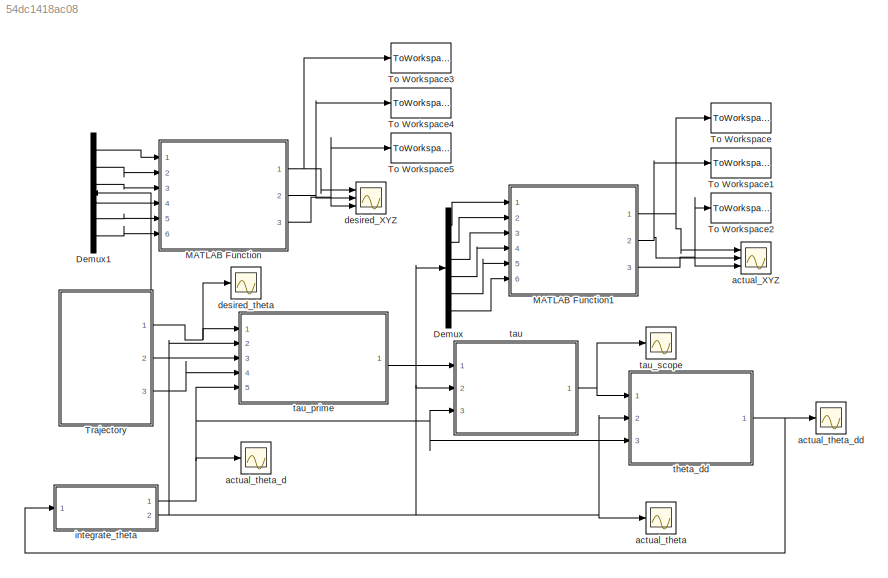
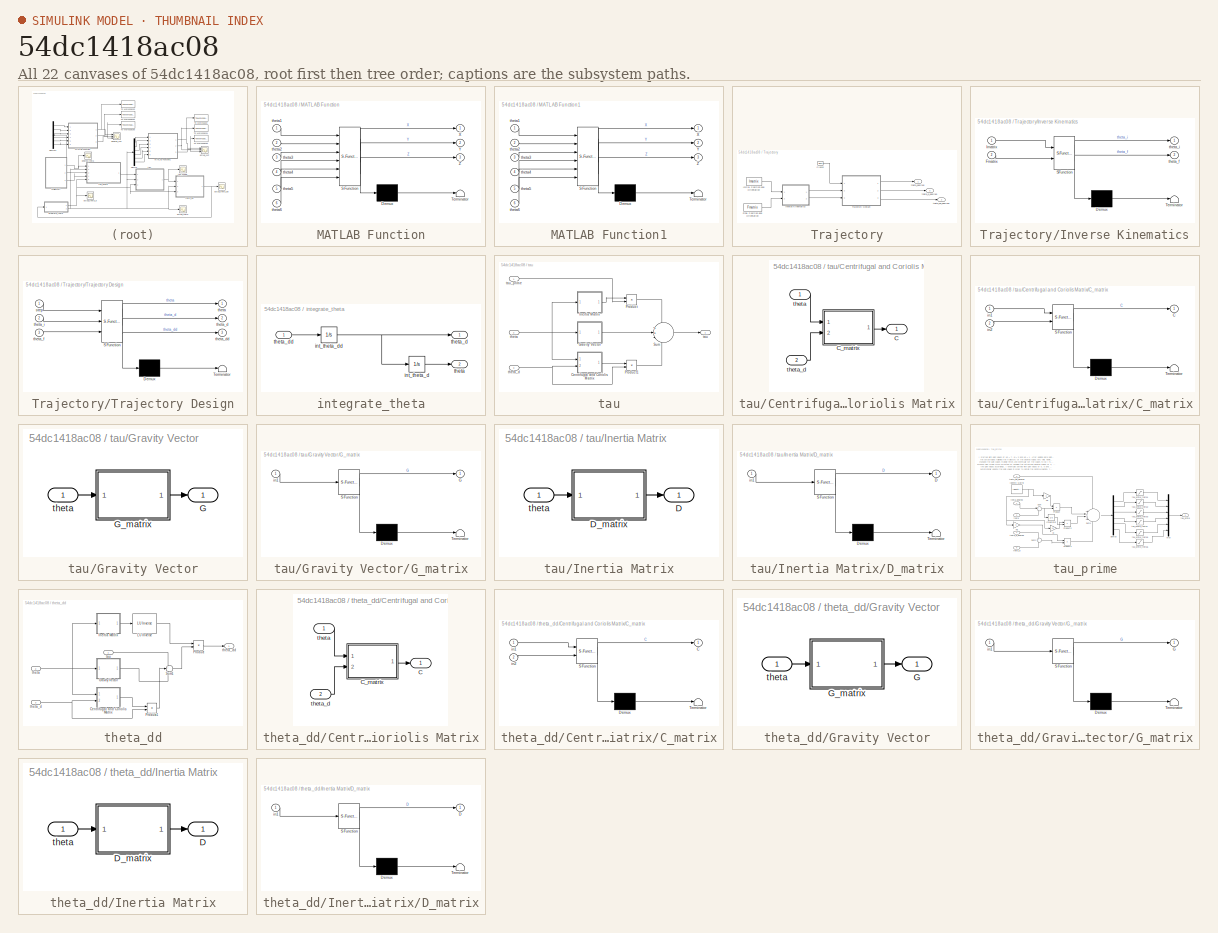
[diagram: thumbnail index - all 22 canvases of the model, root first then tree order]
MODEL slx_54dc1418ac08
KIND model
CONFIG AbsTol = auto
CONFIG EnableMultiTasking = on
CONFIG FixedStep = auto
CONFIG MaxStep = auto
CONFIG MinStep = auto
CONFIG RelTol = 1e-3
CONFIG SampleTimeConstraint = Unconstrained
CONFIG Solver = VariableStepAuto
CONFIG SolverName = VariableStepAuto
CONFIG StartTime = 0.0
CONFIG StopTime = 10.0
BLOCK [Demux] Demux
  DisplayOption = bar
  Outputs = 6
  Ports = [1, 6]
BLOCK [Demux] Demux1
  DisplayOption = bar
  Outputs = 6
  Ports = [1, 6]
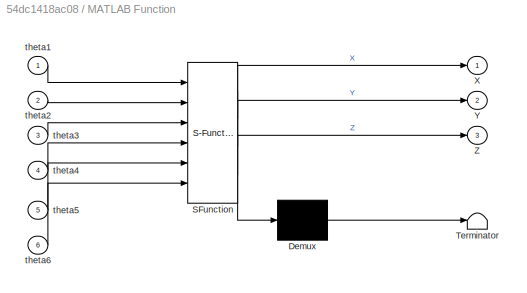
BLOCK [SubSystem] MATLAB Function
  ErrorFcn = Stateflow.Translate.translate
  PermitHierarchicalResolution = ExplicitOnly
  Ports = [6, 3]
  RequestExecContextInheritance = off
  SFBlockType = MATLAB Function
  TreatAsAtomicUnit = on
  Variant = off
BLOCK [Demux] MATLAB Function/ Demux 
  Outputs = 1
  Ports = [1, 1]
BLOCK [S-Function] MATLAB Function/ SFunction 
  EnableBusSupport = on
  FunctionName = sf_sfun
  PortCounts = [6 4]
  Ports = [6, 4]
  SFcnIsStateOwnerBlock = off
  SFunctionDeploymentMode = off
  Tag = Stateflow S-Function PID_Controller 2
BLOCK [Terminator] MATLAB Function/ Terminator 
BLOCK [Outport] MATLAB Function/X
  IconDisplay = Port number
BLOCK [Outport] MATLAB Function/Y
  IconDisplay = Port number
  Port = 2
BLOCK [Outport] MATLAB Function/Z
  IconDisplay = Port number
  Port = 3
BLOCK [Inport] MATLAB Function/theta1
  IconDisplay = Port number
BLOCK [Inport] MATLAB Function/theta2
  IconDisplay = Port number
  Port = 2
BLOCK [Inport] MATLAB Function/theta3
  IconDisplay = Port number
  Port = 3
BLOCK [Inport] MATLAB Function/theta4
  IconDisplay = Port number
  Port = 4
BLOCK [Inport] MATLAB Function/theta5
  IconDisplay = Port number
  Port = 5
BLOCK [Inport] MATLAB Function/theta6
  IconDisplay = Port number
  Port = 6
BLOCK [SubSystem] MATLAB Function1
  ErrorFcn = Stateflow.Translate.translate
  PermitHierarchicalResolution = ExplicitOnly
  Ports = [6, 3]
  RequestExecContextInheritance = off
  SFBlockType = MATLAB Function
  TreatAsAtomicUnit = on
  Variant = off
BLOCK [Demux] MATLAB Function1/ Demux 
  Outputs = 1
  Ports = [1, 1]
BLOCK [S-Function] MATLAB Function1/ SFunction 
  EnableBusSupport = on
  FunctionName = sf_sfun
  PortCounts = [6 4]
  Ports = [6, 4]
  SFcnIsStateOwnerBlock = off
  SFunctionDeploymentMode = off
  Tag = Stateflow S-Function PID_Controller 1
BLOCK [Terminator] MATLAB Function1/ Terminator 
BLOCK [Outport] MATLAB Function1/X
  IconDisplay = Port number
BLOCK [Outport] MATLAB Function1/Y
  IconDisplay = Port number
  Port = 2
BLOCK [Outport] MATLAB Function1/Z
  IconDisplay = Port number
  Port = 3
BLOCK [Inport] MATLAB Function1/theta1
  IconDisplay = Port number
BLOCK [Inport] MATLAB Function1/theta2
  IconDisplay = Port number
  Port = 2
BLOCK [Inport] MATLAB Function1/theta3
  IconDisplay = Port number
  Port = 3
BLOCK [Inport] MATLAB Function1/theta4
  IconDisplay = Port number
  Port = 4
BLOCK [Inport] MATLAB Function1/theta5
  IconDisplay = Port number
  Port = 5
BLOCK [Inport] MATLAB Function1/theta6
  IconDisplay = Port number
  Port = 6
BLOCK [ToWorkspace] To Workspace
  FixptAsFi = on
  MaxDataPoints = inf
  Ports = [1]
  SampleTime = -1
  Save2DSignal = 3-D array (concatenate along third dimension)
  VariableName = actual_X
BLOCK [ToWorkspace] To Workspace1
  FixptAsFi = on
  MaxDataPoints = inf
  Ports = [1]
  SampleTime = -1
  Save2DSignal = 3-D array (concatenate along third dimension)
  VariableName = actual_Y
BLOCK [ToWorkspace] To Workspace2
  FixptAsFi = on
  MaxDataPoints = inf
  Ports = [1]
  SampleTime = -1
  Save2DSignal = 3-D array (concatenate along third dimension)
  VariableName = actual_Z
BLOCK [ToWorkspace] To Workspace3
  FixptAsFi = on
  MaxDataPoints = inf
  Ports = [1]
  SampleTime = -1
  Save2DSignal = 3-D array (concatenate along third dimension)
  VariableName = desired_X
BLOCK [ToWorkspace] To Workspace4
  FixptAsFi = on
  MaxDataPoints = inf
  Ports = [1]
  SampleTime = -1
  Save2DSignal = 3-D array (concatenate along third dimension)
  VariableName = desired_Y
BLOCK [ToWorkspace] To Workspace5
  FixptAsFi = on
  MaxDataPoints = inf
  Ports = [1]
  SampleTime = -1
  Save2DSignal = 3-D array (concatenate along third dimension)
  VariableName = desired_Z
BLOCK [SubSystem] Trajectory
  Permissions = ReadOnly
  Ports = [0, 3]
  RequestExecContextInheritance = off
  Variant = off
BLOCK [Clock] Trajectory/Clock2
  Decimation = 1000
BLOCK [Constant] Trajectory/Final Position and Orientation
  Value = Fmatrix
BLOCK [Constant] Trajectory/Initial Position and Orientation
  Value = Imatrix
BLOCK [SubSystem] Trajectory/Inverse Kinematics
  ErrorFcn = Stateflow.Translate.translate
  PermitHierarchicalResolution = ExplicitOnly
  Ports = [2, 2]
  RequestExecContextInheritance = off
  SFBlockType = MATLAB Function
  TreatAsAtomicUnit = on
  Variant = off
BLOCK [Demux] Trajectory/Inverse Kinematics/ Demux 
  Outputs = 1
  Ports = [1, 1]
BLOCK [S-Function] Trajectory/Inverse Kinematics/ SFunction 
  EnableBusSupport = on
  FunctionName = sf_sfun
  PortCounts = [2 3]
  Ports = [2, 3]
  SFcnIsStateOwnerBlock = off
  SFunctionDeploymentMode = off
  Tag = Stateflow S-Function PID_Controller 4
BLOCK [Terminator] Trajectory/Inverse Kinematics/ Terminator 
BLOCK [Inport] Trajectory/Inverse Kinematics/Fmatrix
  IconDisplay = Port number
  Port = 2
BLOCK [Inport] Trajectory/Inverse Kinematics/Imatrix
  IconDisplay = Port number
BLOCK [Outport] Trajectory/Inverse Kinematics/theta_f
  IconDisplay = Port number
  Port = 2
BLOCK [Outport] Trajectory/Inverse Kinematics/theta_i
  IconDisplay = Port number
BLOCK [SubSystem] Trajectory/Trajectory Design
  ErrorFcn = Stateflow.Translate.translate
  PermitHierarchicalResolution = ExplicitOnly
  Ports = [3, 3]
  RequestExecContextInheritance = off
  SFBlockType = MATLAB Function
  TreatAsAtomicUnit = on
  Variant = off
BLOCK [Demux] Trajectory/Trajectory Design/ Demux 
  Outputs = 1
  Ports = [1, 1]
BLOCK [S-Function] Trajectory/Trajectory Design/ SFunction 
  EnableBusSupport = on
  FunctionName = sf_sfun
  PortCounts = [3 4]
  Ports = [3, 4]
  SFcnIsStateOwnerBlock = off
  SFunctionDeploymentMode = off
  Tag = Stateflow S-Function PID_Controller 32
BLOCK [Terminator] Trajectory/Trajectory Design/ Terminator 
BLOCK [Inport] Trajectory/Trajectory Design/step
  IconDisplay = Port number
BLOCK [Outport] Trajectory/Trajectory Design/theta
  IconDisplay = Port number
BLOCK [Outport] Trajectory/Trajectory Design/theta_d
  IconDisplay = Port number
  Port = 2
BLOCK [Outport] Trajectory/Trajectory Design/theta_dd
  IconDisplay = Port number
  Port = 3
BLOCK [Inport] Trajectory/Trajectory Design/theta_f
  IconDisplay = Port number
  Port = 3
BLOCK [Inport] Trajectory/Trajectory Design/theta_i
  IconDisplay = Port number
  Port = 2
BLOCK [Outport] Trajectory/theta_d_desired
  IconDisplay = Port number
  Port = 3
BLOCK [Outport] Trajectory/theta_dd_desired
  IconDisplay = Port number
  Port = 2
BLOCK [Outport] Trajectory/theta_desired
  IconDisplay = Port number
BLOCK [Scope] actual_XYZ
  NumInputPorts = 3
  Ports = [3]
  ScopeSpecificationString = Simulink.scopes.TimeScopeBlockCfg('CurrentConfiguration', extmgr.ConfigurationSet(extmgr.Configuration('Core','General UI',true),extmgr.Configuration('Core','Source UI',true),extmgr.Configuration('Sources','WiredSimulink',true,'DataLoggingVariableName','ScopeData1'),extmgr.Configuration('Visuals','Time Domain',true,'SerializedDisplays',{struct('MinYLimReal','-0.16966','MaxYLimReal','1.68552','YLab...<+1448ch>
BLOCK [Scope] actual_theta
  NumInputPorts = 1
  Ports = [1]
  ScopeSpecificationString = Simulink.scopes.TimeScopeBlockCfg('CurrentConfiguration', extmgr.ConfigurationSet(extmgr.Configuration('Core','General UI',true),extmgr.Configuration('Core','Source UI',true),extmgr.Configuration('Sources','WiredSimulink',true,'DataLoggingVariableName','actual_theta_scope','DataLogging',true,'DataLoggingSaveFormat','Array'),extmgr.Configuration('Visuals','Time Domain',true,'SerializedDisplays',{st...<+1624ch>
BLOCK [Scope] actual_theta_d
  NumInputPorts = 1
  Ports = [1]
  ScopeSpecificationString = Simulink.scopes.TimeScopeBlockCfg('CurrentConfiguration', extmgr.ConfigurationSet(extmgr.Configuration('Core','General UI',true),extmgr.Configuration('Core','Source UI',true),extmgr.Configuration('Sources','WiredSimulink',true,'DataLoggingVariableName','actual_theta_d_scope','DataLogging',true,'DataLoggingSaveFormat','Array'),extmgr.Configuration('Visuals','Time Domain',true,'SerializedDisplays',{...<+1628ch>
BLOCK [Scope] actual_theta_dd
  NumInputPorts = 1
  Ports = [1]
  ScopeSpecificationString = Simulink.scopes.TimeScopeBlockCfg('CurrentConfiguration', extmgr.ConfigurationSet(extmgr.Configuration('Core','General UI',true),extmgr.Configuration('Core','Source UI',true),extmgr.Configuration('Sources','WiredSimulink',true,'DataLoggingVariableName','actual_theta_dd_scope','DataLogging',true,'DataLoggingSaveFormat','Array'),extmgr.Configuration('Visuals','Time Domain',true,'SerializedDisplays',...<+1573ch>
BLOCK [Scope] desired_XYZ
  NumInputPorts = 3
  Ports = [3]
  ScopeSpecificationString = Simulink.scopes.TimeScopeBlockCfg('CurrentConfiguration', extmgr.ConfigurationSet(extmgr.Configuration('Core','General UI',true),extmgr.Configuration('Core','Source UI',true),extmgr.Configuration('Sources','WiredSimulink',true,'DataLoggingVariableName','ScopeData2'),extmgr.Configuration('Visuals','Time Domain',true,'SerializedDisplays',{struct('MinYLimReal','-0.1875','MaxYLimReal','1.6875','YLabel...<+1439ch>
BLOCK [Scope] desired_theta
  NumInputPorts = 1
  Ports = [1]
  ScopeSpecificationString = Simulink.scopes.TimeScopeBlockCfg('CurrentConfiguration', extmgr.ConfigurationSet(extmgr.Configuration('Core','General UI',true),extmgr.Configuration('Core','Source UI',true),extmgr.Configuration('Sources','WiredSimulink',true),extmgr.Configuration('Visuals','Time Domain',true,'SerializedDisplays',{struct('MinYLimReal','-2.94444','MaxYLimReal','1.68466','YLabelReal','','MinYLimMag','0.00000','MaxY...<+1472ch>
BLOCK [SubSystem] integrate_theta
  Ports = [1, 2]
  RequestExecContextInheritance = off
  Variant = off
BLOCK [Integrator] integrate_theta/int_theta_d
  Ports = [1, 1]
BLOCK [Integrator] integrate_theta/int_theta_dd
  Ports = [1, 1]
BLOCK [Outport] integrate_theta/theta
  IconDisplay = Port number
  Port = 2
BLOCK [Outport] integrate_theta/theta_d
  IconDisplay = Port number
BLOCK [Inport] integrate_theta/theta_dd
  IconDisplay = Port number
BLOCK [SubSystem] tau
  Ports = [3, 1]
  RequestExecContextInheritance = off
  Variant = off
BLOCK [SubSystem] tau/Centrifugal and Coriolis Matrix
  Permissions = ReadOnly
  Ports = [2, 1]
  RequestExecContextInheritance = off
  Variant = off
BLOCK [Outport] tau/Centrifugal and Coriolis Matrix/C
  IconDisplay = Port number
BLOCK [SubSystem] tau/Centrifugal and Coriolis Matrix/C_matrix
  ErrorFcn = Stateflow.Translate.translate
  PermitHierarchicalResolution = ExplicitOnly
  Ports = [2, 1]
  RequestExecContextInheritance = off
  SFBlockType = MATLAB Function
  TreatAsAtomicUnit = on
  Variant = off
BLOCK [Demux] tau/Centrifugal and Coriolis Matrix/C_matrix/ Demux 
  Outputs = 1
  Ports = [1, 1]
BLOCK [S-Function] tau/Centrifugal and Coriolis Matrix/C_matrix/ SFunction 
  EnableBusSupport = on
  FunctionName = sf_sfun
  PortCounts = [2 2]
  Ports = [2, 2]
  SFcnIsStateOwnerBlock = off
  SFunctionDeploymentMode = off
  Tag = Stateflow S-Function PID_Controller 5
BLOCK [Terminator] tau/Centrifugal and Coriolis Matrix/C_matrix/ Terminator 
BLOCK [Outport] tau/Centrifugal and Coriolis Matrix/C_matrix/C
  IconDisplay = Port number
BLOCK [Inport] tau/Centrifugal and Coriolis Matrix/C_matrix/in1
  IconDisplay = Port number
BLOCK [Inport] tau/Centrifugal and Coriolis Matrix/C_matrix/in2
  IconDisplay = Port number
  Port = 2
BLOCK [Inport] tau/Centrifugal and Coriolis Matrix/theta
  IconDisplay = Port number
BLOCK [Inport] tau/Centrifugal and Coriolis Matrix/theta_d
  IconDisplay = Port number
  Port = 2
BLOCK [SubSystem] tau/Gravity Vector
  Permissions = ReadOnly
  Ports = [1, 1]
  RequestExecContextInheritance = off
  Variant = off
BLOCK [Outport] tau/Gravity Vector/G
  IconDisplay = Port number
BLOCK [SubSystem] tau/Gravity Vector/G_matrix
  ErrorFcn = Stateflow.Translate.translate
  PermitHierarchicalResolution = ExplicitOnly
  Ports = [1, 1]
  RequestExecContextInheritance = off
  SFBlockType = MATLAB Function
  TreatAsAtomicUnit = on
  Variant = off
BLOCK [Demux] tau/Gravity Vector/G_matrix/ Demux 
  Outputs = 1
  Ports = [1, 1]
BLOCK [S-Function] tau/Gravity Vector/G_matrix/ SFunction 
  EnableBusSupport = on
  FunctionName = sf_sfun
  PortCounts = [1 2]
  Ports = [1, 2]
  SFcnIsStateOwnerBlock = off
  SFunctionDeploymentMode = off
  Tag = Stateflow S-Function PID_Controller 6
BLOCK [Terminator] tau/Gravity Vector/G_matrix/ Terminator 
BLOCK [Outport] tau/Gravity Vector/G_matrix/G
  IconDisplay = Port number
BLOCK [Inport] tau/Gravity Vector/G_matrix/in1
  IconDisplay = Port number
BLOCK [Inport] tau/Gravity Vector/theta
  IconDisplay = Port number
BLOCK [SubSystem] tau/Inertia Matrix
  Permissions = ReadOnly
  Ports = [1, 1]
  RequestExecContextInheritance = off
  Variant = off
BLOCK [Outport] tau/Inertia Matrix/D
  IconDisplay = Port number
BLOCK [SubSystem] tau/Inertia Matrix/D_matrix
  ErrorFcn = Stateflow.Translate.translate
  PermitHierarchicalResolution = ExplicitOnly
  Ports = [1, 1]
  RequestExecContextInheritance = off
  SFBlockType = MATLAB Function
  TreatAsAtomicUnit = on
  Variant = off
BLOCK [Demux] tau/Inertia Matrix/D_matrix/ Demux 
  Outputs = 1
  Ports = [1, 1]
BLOCK [S-Function] tau/Inertia Matrix/D_matrix/ SFunction 
  EnableBusSupport = on
  FunctionName = sf_sfun
  PortCounts = [1 2]
  Ports = [1, 2]
  SFcnIsStateOwnerBlock = off
  SFunctionDeploymentMode = off
  Tag = Stateflow S-Function PID_Controller 7
BLOCK [Terminator] tau/Inertia Matrix/D_matrix/ Terminator 
BLOCK [Outport] tau/Inertia Matrix/D_matrix/D
  IconDisplay = Port number
BLOCK [Inport] tau/Inertia Matrix/D_matrix/in1
  IconDisplay = Port number
BLOCK [Inport] tau/Inertia Matrix/theta
  IconDisplay = Port number
BLOCK [Product] tau/Product
  InputSameDT = off
  Multiplication = Matrix(*)
  OutDataTypeStr = Inherit: Inherit via internal rule
  Ports = [2, 1]
  RndMeth = Floor
  SaturateOnIntegerOverflow = off
BLOCK [Product] tau/Product1
  InputSameDT = off
  Multiplication = Matrix(*)
  OutDataTypeStr = Inherit: Inherit via internal rule
  Ports = [2, 1]
  RndMeth = Floor
  SaturateOnIntegerOverflow = off
BLOCK [Sum] tau/Sum
  IconShape = round
  InputSameDT = off
  Inputs = 3
  OutDataTypeStr = Inherit: Inherit via internal rule
  Ports = [3, 1]
  SaturateOnIntegerOverflow = off
BLOCK [Outport] tau/tau
  IconDisplay = Port number
BLOCK [Inport] tau/tau_prime
  IconDisplay = Port number
BLOCK [Inport] tau/theta
  IconDisplay = Port number
  Port = 2
BLOCK [Inport] tau/theta_d
  IconDisplay = Port number
  Port = 3
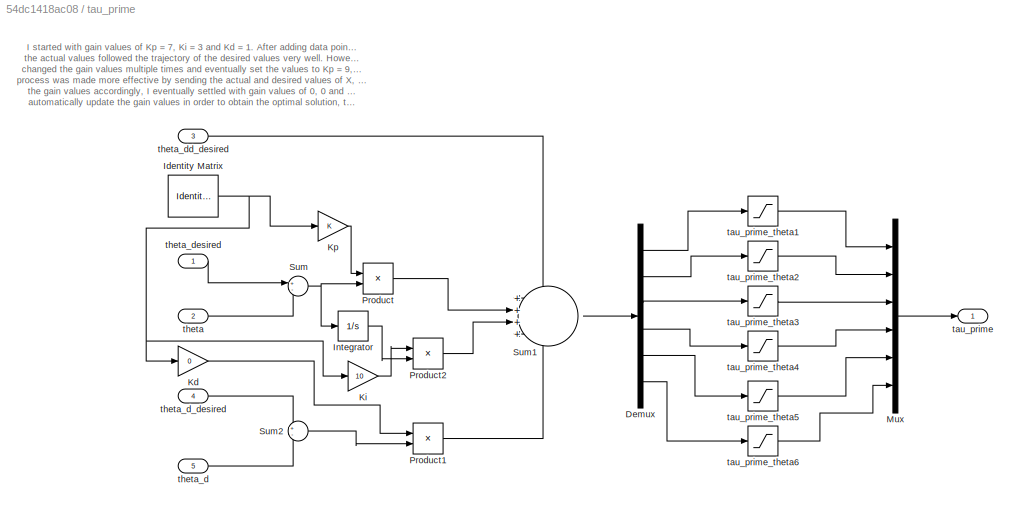
BLOCK [SubSystem] tau_prime
  Ports = [5, 1]
  RequestExecContextInheritance = off
  Variant = off
BLOCK [Demux] tau_prime/Demux
  DisplayOption = bar
  Outputs = 6
  Ports = [1, 6]
BLOCK [Reference] tau_prime/Identity Matrix  REF=dspmtrx3/Identity Matrix
  Ports = [0, 1]
  SourceBlock = dspmtrx3/Identity Matrix
  SourceProductBaseCode = DS
  SourceProductName = DSP System Toolbox
  SourceType = Identity Matrix
BLOCK [Integrator] tau_prime/Integrator
  Ports = [1, 1]
BLOCK [Gain] tau_prime/Kd
  Gain = 0
  Multiplication = Matrix(K*u)
  OutDataTypeStr = Inherit: Inherit via internal rule
  ParamDataTypeStr = Inherit: Inherit via internal rule
  SaturateOnIntegerOverflow = off
BLOCK [Gain] tau_prime/Ki
  Gain = 10
  Multiplication = Matrix(K*u)
  OutDataTypeStr = Inherit: Inherit via internal rule
  ParamDataTypeStr = Inherit: Inherit via internal rule
  SaturateOnIntegerOverflow = off
BLOCK [Gain] tau_prime/Kp
  Multiplication = Matrix(K*u)
  OutDataTypeStr = Inherit: Inherit via internal rule
  ParamDataTypeStr = Inherit: Inherit via internal rule
  SaturateOnIntegerOverflow = off
BLOCK [Mux] tau_prime/Mux
  DisplayOption = bar
  Inputs = 6
  Ports = [6, 1]
BLOCK [Product] tau_prime/Product
  InputSameDT = off
  Multiplication = Matrix(*)
  OutDataTypeStr = Inherit: Inherit via internal rule
  Ports = [2, 1]
  RndMeth = Floor
  SaturateOnIntegerOverflow = off
BLOCK [Product] tau_prime/Product1
  InputSameDT = off
  Multiplication = Matrix(*)
  OutDataTypeStr = Inherit: Inherit via internal rule
  Ports = [2, 1]
  RndMeth = Floor
  SaturateOnIntegerOverflow = off
BLOCK [Product] tau_prime/Product2
  InputSameDT = off
  Multiplication = Matrix(*)
  OutDataTypeStr = Inherit: Inherit via internal rule
  Ports = [2, 1]
  RndMeth = Floor
  SaturateOnIntegerOverflow = off
BLOCK [Sum] tau_prime/Sum
  IconShape = round
  InputSameDT = off
  Inputs = +-
  OutDataTypeStr = Inherit: Inherit via internal rule
  Ports = [2, 1]
  SaturateOnIntegerOverflow = off
BLOCK [Sum] tau_prime/Sum1
  IconShape = round
  InputSameDT = off
  Inputs = ++++
  OutDataTypeStr = Inherit: Inherit via internal rule
  Ports = [4, 1]
  SaturateOnIntegerOverflow = off
BLOCK [Sum] tau_prime/Sum2
  IconShape = round
  InputSameDT = off
  Inputs = +-
  OutDataTypeStr = Inherit: Inherit via internal rule
  Ports = [2, 1]
  SaturateOnIntegerOverflow = off
BLOCK [Outport] tau_prime/tau_prime
  IconDisplay = Port number
BLOCK [Saturate] tau_prime/tau_prime_theta1
  InputPortMap = u0
  LowerLimit = -16
  Ports = [1, 1]
  UpperLimit = 16
BLOCK [Saturate] tau_prime/tau_prime_theta2
  InputPortMap = u0
  LowerLimit = -32
  Ports = [1, 1]
  UpperLimit = 32
BLOCK [Saturate] tau_prime/tau_prime_theta3
  InputPortMap = u0
  LowerLimit = -21
  Ports = [1, 1]
  UpperLimit = 21
BLOCK [Saturate] tau_prime/tau_prime_theta4
  InputPortMap = u0
  LowerLimit = -5
  Ports = [1, 1]
  UpperLimit = 5
BLOCK [Saturate] tau_prime/tau_prime_theta5
  InputPortMap = u0
  LowerLimit = -5
  Ports = [1, 1]
  UpperLimit = 5
BLOCK [Saturate] tau_prime/tau_prime_theta6
  InputPortMap = u0
  LowerLimit = -4
  Ports = [1, 1]
  UpperLimit = 4
BLOCK [Inport] tau_prime/theta
  IconDisplay = Port number
  Port = 2
BLOCK [Inport] tau_prime/theta_d
  IconDisplay = Port number
  Port = 5
BLOCK [Inport] tau_prime/theta_d_desired
  IconDisplay = Port number
  Port = 4
BLOCK [Inport] tau_prime/theta_dd_desired
  IconDisplay = Port number
  Port = 3
BLOCK [Inport] tau_prime/theta_desired
  IconDisplay = Port number
BLOCK [Scope] tau_scope
  NumInputPorts = 1
  Ports = [1]
  ScopeSpecificationString = Simulink.scopes.TimeScopeBlockCfg('CurrentConfiguration', extmgr.ConfigurationSet(extmgr.Configuration('Core','General UI',true),extmgr.Configuration('Core','Source UI',true),extmgr.Configuration('Sources','WiredSimulink',true,'DataLoggingVariableName','tau_scope','DataLogging',true,'DataLoggingSaveFormat','Array'),extmgr.Configuration('Visuals','Time Domain',true,'SerializedDisplays',{struct('Min...<+1531ch>
BLOCK [SubSystem] theta_dd
  Ports = [3, 1]
  RequestExecContextInheritance = off
  Variant = off
BLOCK [Reference] theta_dd/ LU Inverse  REF=dspinverses/ LU Inverse
  Ports = [1, 1]
  SourceBlock = dspinverses/ LU Inverse
  SourceProductBaseCode = DS
  SourceProductName = DSP System Toolbox
  SourceType = LU Inverse
BLOCK [SubSystem] theta_dd/Centrifugal and Coriolis Matrix
  Permissions = ReadOnly
  Ports = [2, 1]
  RequestExecContextInheritance = off
  Variant = off
BLOCK [Outport] theta_dd/Centrifugal and Coriolis Matrix/C
  IconDisplay = Port number
BLOCK [SubSystem] theta_dd/Centrifugal and Coriolis Matrix/C_matrix
  ErrorFcn = Stateflow.Translate.translate
  PermitHierarchicalResolution = ExplicitOnly
  Ports = [2, 1]
  RequestExecContextInheritance = off
  SFBlockType = MATLAB Function
  TreatAsAtomicUnit = on
  Variant = off
BLOCK [Demux] theta_dd/Centrifugal and Coriolis Matrix/C_matrix/ Demux 
  Outputs = 1
  Ports = [1, 1]
BLOCK [S-Function] theta_dd/Centrifugal and Coriolis Matrix/C_matrix/ SFunction 
  EnableBusSupport = on
  FunctionName = sf_sfun
  PortCounts = [2 2]
  Ports = [2, 2]
  SFcnIsStateOwnerBlock = off
  SFunctionDeploymentMode = off
  Tag = Stateflow S-Function PID_Controller 8
BLOCK [Terminator] theta_dd/Centrifugal and Coriolis Matrix/C_matrix/ Terminator 
BLOCK [Outport] theta_dd/Centrifugal and Coriolis Matrix/C_matrix/C
  IconDisplay = Port number
BLOCK [Inport] theta_dd/Centrifugal and Coriolis Matrix/C_matrix/in1
  IconDisplay = Port number
BLOCK [Inport] theta_dd/Centrifugal and Coriolis Matrix/C_matrix/in2
  IconDisplay = Port number
  Port = 2
BLOCK [Inport] theta_dd/Centrifugal and Coriolis Matrix/theta
  IconDisplay = Port number
BLOCK [Inport] theta_dd/Centrifugal and Coriolis Matrix/theta_d
  IconDisplay = Port number
  Port = 2
BLOCK [SubSystem] theta_dd/Gravity Vector
  Permissions = ReadOnly
  Ports = [1, 1]
  RequestExecContextInheritance = off
  Variant = off
BLOCK [Outport] theta_dd/Gravity Vector/G
  IconDisplay = Port number
BLOCK [SubSystem] theta_dd/Gravity Vector/G_matrix
  ErrorFcn = Stateflow.Translate.translate
  PermitHierarchicalResolution = ExplicitOnly
  Ports = [1, 1]
  RequestExecContextInheritance = off
  SFBlockType = MATLAB Function
  TreatAsAtomicUnit = on
  Variant = off
BLOCK [Demux] theta_dd/Gravity Vector/G_matrix/ Demux 
  Outputs = 1
  Ports = [1, 1]
BLOCK [S-Function] theta_dd/Gravity Vector/G_matrix/ SFunction 
  EnableBusSupport = on
  FunctionName = sf_sfun
  PortCounts = [1 2]
  Ports = [1, 2]
  SFcnIsStateOwnerBlock = off
  SFunctionDeploymentMode = off
  Tag = Stateflow S-Function PID_Controller 9
BLOCK [Terminator] theta_dd/Gravity Vector/G_matrix/ Terminator 
BLOCK [Outport] theta_dd/Gravity Vector/G_matrix/G
  IconDisplay = Port number
BLOCK [Inport] theta_dd/Gravity Vector/G_matrix/in1
  IconDisplay = Port number
BLOCK [Inport] theta_dd/Gravity Vector/theta
  IconDisplay = Port number
BLOCK [SubSystem] theta_dd/Inertia Matrix
  Permissions = ReadOnly
  Ports = [1, 1]
  RequestExecContextInheritance = off
  Variant = off
BLOCK [Outport] theta_dd/Inertia Matrix/D
  IconDisplay = Port number
BLOCK [SubSystem] theta_dd/Inertia Matrix/D_matrix
  ErrorFcn = Stateflow.Translate.translate
  PermitHierarchicalResolution = ExplicitOnly
  Ports = [1, 1]
  RequestExecContextInheritance = off
  SFBlockType = MATLAB Function
  TreatAsAtomicUnit = on
  Variant = off
BLOCK [Demux] theta_dd/Inertia Matrix/D_matrix/ Demux 
  Outputs = 1
  Ports = [1, 1]
BLOCK [S-Function] theta_dd/Inertia Matrix/D_matrix/ SFunction 
  EnableBusSupport = on
  FunctionName = sf_sfun
  PortCounts = [1 2]
  Ports = [1, 2]
  SFcnIsStateOwnerBlock = off
  SFunctionDeploymentMode = off
  Tag = Stateflow S-Function PID_Controller 10
BLOCK [Terminator] theta_dd/Inertia Matrix/D_matrix/ Terminator 
BLOCK [Outport] theta_dd/Inertia Matrix/D_matrix/D
  IconDisplay = Port number
BLOCK [Inport] theta_dd/Inertia Matrix/D_matrix/in1
  IconDisplay = Port number
BLOCK [Inport] theta_dd/Inertia Matrix/theta
  IconDisplay = Port number
BLOCK [Product] theta_dd/Product
  InputSameDT = off
  Multiplication = Matrix(*)
  OutDataTypeStr = Inherit: Inherit via internal rule
  Ports = [2, 1]
  RndMeth = Floor
  SaturateOnIntegerOverflow = off
BLOCK [Product] theta_dd/Product1
  InputSameDT = off
  Multiplication = Matrix(*)
  OutDataTypeStr = Inherit: Inherit via internal rule
  Ports = [2, 1]
  RndMeth = Floor
  SaturateOnIntegerOverflow = off
BLOCK [Sum] theta_dd/Sum1
  IconShape = round
  InputSameDT = off
  Inputs = +--
  OutDataTypeStr = Inherit: Inherit via internal rule
  Ports = [3, 1]
  SaturateOnIntegerOverflow = off
BLOCK [Inport] theta_dd/tau
  IconDisplay = Port number
BLOCK [Inport] theta_dd/theta
  IconDisplay = Port number
  Port = 2
BLOCK [Inport] theta_dd/theta_d
  IconDisplay = Port number
  Port = 3
BLOCK [Outport] theta_dd/theta_dd
  IconDisplay = Port number
ANNOTATION tau_prime: I started with gain values of Kp = 7, Ki = 3 and Kd = 1. After adding data points to the actual and desired values of X, Y and Z I looked at the outputs and saw that the actual values followed the trajectory of the desired values very well. However I could see that the actual values did deviate from the desired. I changed the gain values multiple times and eventually set the values to Kp = 9, Ki =...<+573ch>
LINE Demux1:1 -> MATLAB Function:1
LINE Demux1:2 -> MATLAB Function:2
LINE Demux1:3 -> MATLAB Function:3
LINE Demux1:4 -> MATLAB Function:4
LINE Demux1:5 -> MATLAB Function:5
LINE Demux1:6 -> MATLAB Function:6
LINE Demux:1 -> MATLAB Function1:1
LINE Demux:2 -> MATLAB Function1:2
LINE Demux:3 -> MATLAB Function1:3
LINE Demux:4 -> MATLAB Function1:4
LINE Demux:5 -> MATLAB Function1:5
LINE Demux:6 -> MATLAB Function1:6
NET MATLAB Function1:1 -> To Workspace:1, actual_XYZ:1
NET MATLAB Function1:2 -> To Workspace1:1, actual_XYZ:2
NET MATLAB Function1:3 -> To Workspace2:1, actual_XYZ:3
NET MATLAB Function:1 -> To Workspace3:1, desired_XYZ:1
NET MATLAB Function:2 -> To Workspace4:1, desired_XYZ:2
NET MATLAB Function:3 -> To Workspace5:1, desired_XYZ:3
LINE Trajectory/Clock2:1 -> Trajectory/Trajectory Design:1
LINE Trajectory/Final Position and Orientation:1 -> Trajectory/Inverse Kinematics:2
LINE Trajectory/Initial Position and Orientation:1 -> Trajectory/Inverse Kinematics:1
LINE Trajectory/Inverse Kinematics:1 -> Trajectory/Trajectory Design:2
LINE Trajectory/Inverse Kinematics:2 -> Trajectory/Trajectory Design:3
LINE Trajectory/Trajectory Design:1 -> Trajectory/theta_desired:1
LINE Trajectory/Trajectory Design:2 -> Trajectory/theta_d_desired:1
LINE Trajectory/Trajectory Design:3 -> Trajectory/theta_dd_desired:1
NET Trajectory:1 -> Demux1:1, desired_theta:1, tau_prime:1
LINE Trajectory:2 -> tau_prime:3
LINE Trajectory:3 -> tau_prime:4
LINE integrate_theta/int_theta_d:1 -> integrate_theta/theta:1
NET integrate_theta/int_theta_dd:1 -> integrate_theta/int_theta_d:1, integrate_theta/theta_d:1
LINE integrate_theta/theta_dd:1 -> integrate_theta/int_theta_dd:1
NET integrate_theta:1 -> actual_theta_d:1, tau:3, tau_prime:5, theta_dd:3
NET integrate_theta:2 -> Demux:1, actual_theta:1, tau:2, tau_prime:2, theta_dd:2
LINE tau/Centrifugal and Coriolis Matrix/C_matrix:1 -> tau/Centrifugal and Coriolis Matrix/C:1
LINE tau/Centrifugal and Coriolis Matrix/theta:1 -> tau/Centrifugal and Coriolis Matrix/C_matrix:1
LINE tau/Centrifugal and Coriolis Matrix/theta_d:1 -> tau/Centrifugal and Coriolis Matrix/C_matrix:2
LINE tau/Centrifugal and Coriolis Matrix:1 -> tau/Product1:1
LINE tau/Gravity Vector/G_matrix:1 -> tau/Gravity Vector/G:1
LINE tau/Gravity Vector/theta:1 -> tau/Gravity Vector/G_matrix:1
LINE tau/Gravity Vector:1 -> tau/Sum:2
LINE tau/Inertia Matrix/D_matrix:1 -> tau/Inertia Matrix/D:1
LINE tau/Inertia Matrix/theta:1 -> tau/Inertia Matrix/D_matrix:1
LINE tau/Inertia Matrix:1 -> tau/Product:1
LINE tau/Product1:1 -> tau/Sum:3
LINE tau/Product:1 -> tau/Sum:1
LINE tau/Sum:1 -> tau/tau:1
LINE tau/tau_prime:1 -> tau/Product:2
NET tau/theta:1 -> tau/Centrifugal and Coriolis Matrix:1, tau/Gravity Vector:1, tau/Inertia Matrix:1
NET tau/theta_d:1 -> tau/Centrifugal and Coriolis Matrix:2, tau/Product1:2
NET tau:1 -> tau_scope:1, theta_dd:1
LINE tau_prime/Demux:1 -> tau_prime/tau_prime_theta1:1
LINE tau_prime/Demux:2 -> tau_prime/tau_prime_theta2:1
LINE tau_prime/Demux:3 -> tau_prime/tau_prime_theta3:1
LINE tau_prime/Demux:4 -> tau_prime/tau_prime_theta4:1
LINE tau_prime/Demux:5 -> tau_prime/tau_prime_theta5:1
LINE tau_prime/Demux:6 -> tau_prime/tau_prime_theta6:1
NET tau_prime/Identity Matrix:1 -> tau_prime/Kd:1, tau_prime/Ki:1, tau_prime/Kp:1
LINE tau_prime/Integrator:1 -> tau_prime/Product2:2
LINE tau_prime/Kd:1 -> tau_prime/Product1:1
LINE tau_prime/Ki:1 -> tau_prime/Product2:1
LINE tau_prime/Kp:1 -> tau_prime/Product:1
LINE tau_prime/Mux:1 -> tau_prime/tau_prime:1
LINE tau_prime/Product1:1 -> tau_prime/Sum1:4
LINE tau_prime/Product2:1 -> tau_prime/Sum1:3
LINE tau_prime/Product:1 -> tau_prime/Sum1:2
LINE tau_prime/Sum1:1 -> tau_prime/Demux:1
LINE tau_prime/Sum2:1 -> tau_prime/Product1:2
NET tau_prime/Sum:1 -> tau_prime/Integrator:1, tau_prime/Product:2
LINE tau_prime/tau_prime_theta1:1 -> tau_prime/Mux:1
LINE tau_prime/tau_prime_theta2:1 -> tau_prime/Mux:2
LINE tau_prime/tau_prime_theta3:1 -> tau_prime/Mux:3
LINE tau_prime/tau_prime_theta4:1 -> tau_prime/Mux:4
LINE tau_prime/tau_prime_theta5:1 -> tau_prime/Mux:5
LINE tau_prime/tau_prime_theta6:1 -> tau_prime/Mux:6
LINE tau_prime/theta:1 -> tau_prime/Sum:2
LINE tau_prime/theta_d:1 -> tau_prime/Sum2:2
LINE tau_prime/theta_d_desired:1 -> tau_prime/Sum2:1
LINE tau_prime/theta_dd_desired:1 -> tau_prime/Sum1:1
LINE tau_prime/theta_desired:1 -> tau_prime/Sum:1
LINE tau_prime:1 -> tau:1
LINE theta_dd/ LU Inverse:1 -> theta_dd/Product:1
LINE theta_dd/Centrifugal and Coriolis Matrix/C_matrix:1 -> theta_dd/Centrifugal and Coriolis Matrix/C:1
LINE theta_dd/Centrifugal and Coriolis Matrix/theta:1 -> theta_dd/Centrifugal and Coriolis Matrix/C_matrix:1
LINE theta_dd/Centrifugal and Coriolis Matrix/theta_d:1 -> theta_dd/Centrifugal and Coriolis Matrix/C_matrix:2
LINE theta_dd/Centrifugal and Coriolis Matrix:1 -> theta_dd/Product1:1
LINE theta_dd/Gravity Vector/G_matrix:1 -> theta_dd/Gravity Vector/G:1
LINE theta_dd/Gravity Vector/theta:1 -> theta_dd/Gravity Vector/G_matrix:1
LINE theta_dd/Gravity Vector:1 -> theta_dd/Sum1:3
LINE theta_dd/Inertia Matrix/D_matrix:1 -> theta_dd/Inertia Matrix/D:1
LINE theta_dd/Inertia Matrix/theta:1 -> theta_dd/Inertia Matrix/D_matrix:1
LINE theta_dd/Inertia Matrix:1 -> theta_dd/ LU Inverse:1
LINE theta_dd/Product1:1 -> theta_dd/Sum1:2
LINE theta_dd/Product:1 -> theta_dd/theta_dd:1
LINE theta_dd/Sum1:1 -> theta_dd/Product:2
LINE theta_dd/tau:1 -> theta_dd/Sum1:1
NET theta_dd/theta:1 -> theta_dd/Centrifugal and Coriolis Matrix:1, theta_dd/Gravity Vector:1, theta_dd/Inertia Matrix:1
NET theta_dd/theta_d:1 -> theta_dd/Centrifugal and Coriolis Matrix:2, theta_dd/Product1:2
NET theta_dd:1 -> actual_theta_dd:1, integrate_theta:1
note: NET lines group one-source signal fan-out (src -> all destinations, sorted); 1:1 wires keep LINE
CHART MATLAB Function1 states=1 transitions=1
  STATE_LABEL 'eML_blk_kernel()'
  STATE_LABEL 'SCRIPT:\nfunction [X,Y,Z] = ForwardKinematic(theta1,theta2,theta3,theta4,theta5,theta6)\n\n% Set the variables for the following calculations\na = [0;0.5;0;0;0;0];\nd = [0;0.25;0;1;0;0.5];\nalpha = [-90;0;90;-90;90;0]*(pi/180);\n\n% Calculate the different A matrices and then calculate the DH matrix\nA_1 = A(theta1,a(1),d(1),alpha(1));\nA_2 = A(theta2,a(2),d(2),alpha(2));\nA_3 = A(theta3,a(3),d(3),alpha(3));...<+287ch>'
CHART MATLAB Function states=1 transitions=1
  STATE_LABEL 'eML_blk_kernel()'
  STATE_LABEL 'SCRIPT:\nfunction [X,Y,Z] = ForwardKinematic(theta1,theta2,theta3,theta4,theta5,theta6)\n\n% Set the variables for the following calculations\na = [0;0.5;0;0;0;0];\nd = [0;0.25;0;1;0;0.5];\nalpha = [-90;0;90;-90;90;0]*(pi/180);\n\n% Calculate the different A matrices and then calculate the DH matrix\nA_1 = A(theta1,a(1),d(1),alpha(1));\nA_2 = A(theta2,a(2),d(2),alpha(2));\nA_3 = A(theta3,a(3),d(3),alpha(3));...<+287ch>'
CHART Trajectory/Inverse Kinematics states=1 transitions=1
  STATE_LABEL 'eML_blk_kernel()'
  STATE_LABEL "SCRIPT:\nfunction [theta_i,theta_f]=IK(Imatrix,Fmatrix)\n\ntheta_i=[0;0;0;0;0;0];\ntheta_f=[0;0;0;0;0;0];\n% Initial angles\ncoder.extrinsic('InverseKinematic')\n[qi1,qi2,qi3,qi4,qi5,qi6]=InverseKinematic(Imatrix);\n    q01=qi1;\n    q02=qi2;\n    q03=qi3;\n    q04=qi4;\n    q05=qi5;\n    q06=qi6;\n    \n% Final angles\n[qi1,qi2,qi3,qi4,qi5,qi6]=InverseKinematic(Fmatrix);\n    qf1=qi1;\n    qf2=qi2;\n    qf3=qi3;\n  ...<+108ch>"
CHART tau/Centrifugal and Coriolis
 Matrix/C_matrix states=1 transitions=1
  STATE_LABEL 'eML_blk_kernel()'
  STATE_LABEL 'SCRIPT:\nfunction C = Cmatrix(in1,in2)\n\nC=zeros(6,6);\n%CMATRIX\n%    C = CMATRIX(IN1,IN2)\n\n%    This function was generated by the Symbolic Math Toolbox version 7.0.\n%    08-Aug-2017 18:04:25\n\ndq1 = in2(1,:);\ndq2 = in2(2,:);\ndq3 = in2(3,:);\ndq4 = in2(4,:);\ndq5 = in2(5,:);\ndq6 = in2(6,:);\nq1 = in1(1,:);\nq2 = in1(2,:);\nq3 = in1(3,:);\nq4 = in1(4,:);\nq5 = in1(5,:);\nq6 = in1(6,:);\nt2 = cos(q1);\nt3 = cos(...<+3608ch>'
CHART tau/Gravity Vector/G_matrix states=1 transitions=1
  STATE_LABEL 'eML_blk_kernel()'
  STATE_LABEL 'SCRIPT:\nfunction G = Gmatrix(in1)\n\nG=zeros(6,1);\n%GMATRIX\n%    G = GMATRIX(IN1)\n\n%    This function was generated by the Symbolic Math Toolbox version 7.0.\n%    08-Aug-2017 18:04:37\n\nq2 = in1(2,:);\nq3 = in1(3,:);\nq4 = in1(4,:);\nq5 = in1(5,:);\nt2 = sin(q2);\nt3 = cos(q2);\nt4 = cos(q3);\nt5 = sin(q3);\nt6 = t2.*t5;\nt7 = cos(q5);\nt8 = t3.*t5;\nt9 = t2.*t4;\nt10 = t8+t9;\nt11 = sin(q4);\nt15 = t3.*t4;\nt12 = ...<+296ch>'
CHART tau/Inertia Matrix/D_matrix states=1 transitions=1
  STATE_LABEL 'eML_blk_kernel()'
  STATE_LABEL 'SCRIPT:\nfunction D = Dmatrix(in1)\n\nD=zeros(6,6);\n%DMATRIX\n%    D = DMATRIX(IN1)\n\n%    This function was generated by the Symbolic Math Toolbox version 7.0.\n%    08-Aug-2017 16:41:29\n\nq1 = in1(1,:);\nq2 = in1(2,:);\nq3 = in1(3,:);\nq4 = in1(4,:);\nq5 = in1(5,:);\nq6 = in1(6,:);\nt2 = cos(q1);\nt3 = cos(q6);\nt4 = sin(q6);\nt5 = sin(q1);\nt6 = cos(q2);\nt7 = sin(q2);\nt8 = cos(q4);\nt9 = sin(q4);\nt10 = t2.*t4.*(...<+3608ch>'
CHART theta_dd/Centrifugal and Coriolis
 Matrix/C_matrix states=1 transitions=1
  STATE_LABEL 'eML_blk_kernel()'
  STATE_LABEL 'SCRIPT:\nfunction C = Cmatrix(in1,in2)\n\nC=zeros(6,6);\n%CMATRIX\n%    C = CMATRIX(IN1,IN2)\n\n%    This function was generated by the Symbolic Math Toolbox version 7.0.\n%    08-Aug-2017 18:04:25\n\ndq1 = in2(1,:);\ndq2 = in2(2,:);\ndq3 = in2(3,:);\ndq4 = in2(4,:);\ndq5 = in2(5,:);\ndq6 = in2(6,:);\nq1 = in1(1,:);\nq2 = in1(2,:);\nq3 = in1(3,:);\nq4 = in1(4,:);\nq5 = in1(5,:);\nq6 = in1(6,:);\nt2 = cos(q1);\nt3 = cos(...<+3608ch>'
CHART theta_dd/Gravity Vector/G_matrix states=1 transitions=1
  STATE_LABEL 'eML_blk_kernel()'
  STATE_LABEL 'SCRIPT:\nfunction G = Gmatrix(in1)\n\nG=zeros(6,1);\n%GMATRIX\n%    G = GMATRIX(IN1)\n\n%    This function was generated by the Symbolic Math Toolbox version 7.0.\n%    08-Aug-2017 18:04:37\n\nq2 = in1(2,:);\nq3 = in1(3,:);\nq4 = in1(4,:);\nq5 = in1(5,:);\nt2 = sin(q2);\nt3 = cos(q2);\nt4 = cos(q3);\nt5 = sin(q3);\nt6 = t2.*t5;\nt7 = cos(q5);\nt8 = t3.*t5;\nt9 = t2.*t4;\nt10 = t8+t9;\nt11 = sin(q4);\nt15 = t3.*t4;\nt12 = ...<+296ch>'
CHART theta_dd/Inertia Matrix/D_matrix states=1 transitions=1
  STATE_LABEL 'eML_blk_kernel()'
  STATE_LABEL 'SCRIPT:\nfunction D = Dmatrix(in1)\n\nD=zeros(6,6);\n%DMATRIX\n%    D = DMATRIX(IN1)\n\n%    This function was generated by the Symbolic Math Toolbox version 7.0.\n%    08-Aug-2017 16:41:29\n\nq1 = in1(1,:);\nq2 = in1(2,:);\nq3 = in1(3,:);\nq4 = in1(4,:);\nq5 = in1(5,:);\nq6 = in1(6,:);\nt2 = cos(q1);\nt3 = cos(q6);\nt4 = sin(q6);\nt5 = sin(q1);\nt6 = cos(q2);\nt7 = sin(q2);\nt8 = cos(q4);\nt9 = sin(q4);\nt10 = t2.*t4.*(...<+3608ch>'
CHART Trajectory/Trajectory Design states=1 transitions=1
  STATE_LABEL 'eML_blk_kernel()'
  STATE_LABEL 'SCRIPT:\nfunction [theta,theta_d,theta_dd]=Trajectory(step,theta_i,theta_f)\n\ntheta1_i=theta_i(1);\ntheta2_i=theta_i(2);\ntheta3_i=theta_i(3);\ntheta4_i=theta_i(4);\ntheta5_i=theta_i(5);\ntheta6_i=theta_i(6);\n\ntheta1_f=theta_f(1);\ntheta2_f=theta_f(2);\ntheta3_f=theta_f(3);\ntheta4_f=theta_f(4);\ntheta5_f=theta_f(5);\ntheta6_f=theta_f(6);\n\n% Time definition\nT=10;\nt=step/T;\n\n%% Polynomials\n    s=(6*t.^5)-(15*t...<+1009ch>'
